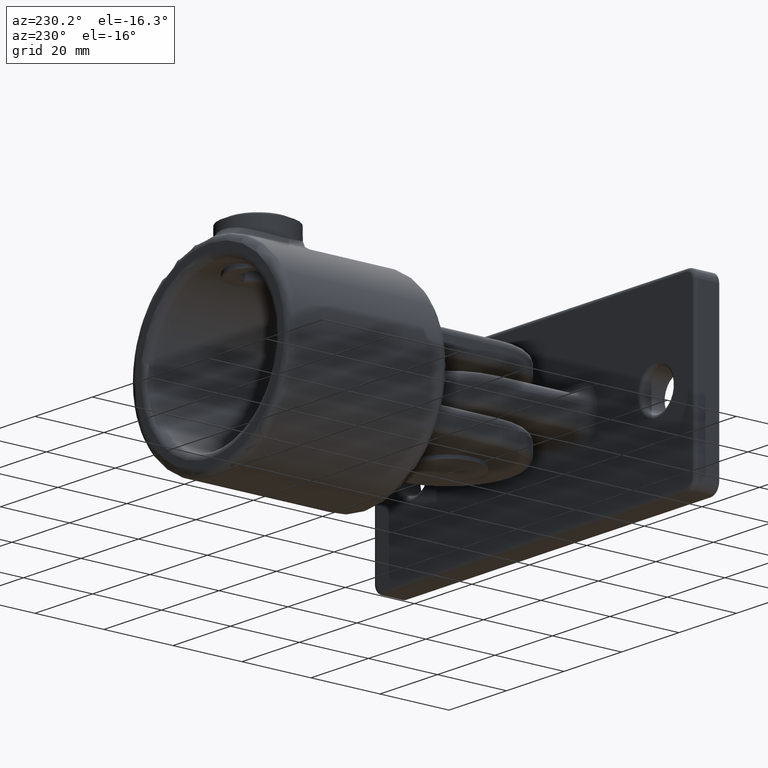
[diagram: clean part render]
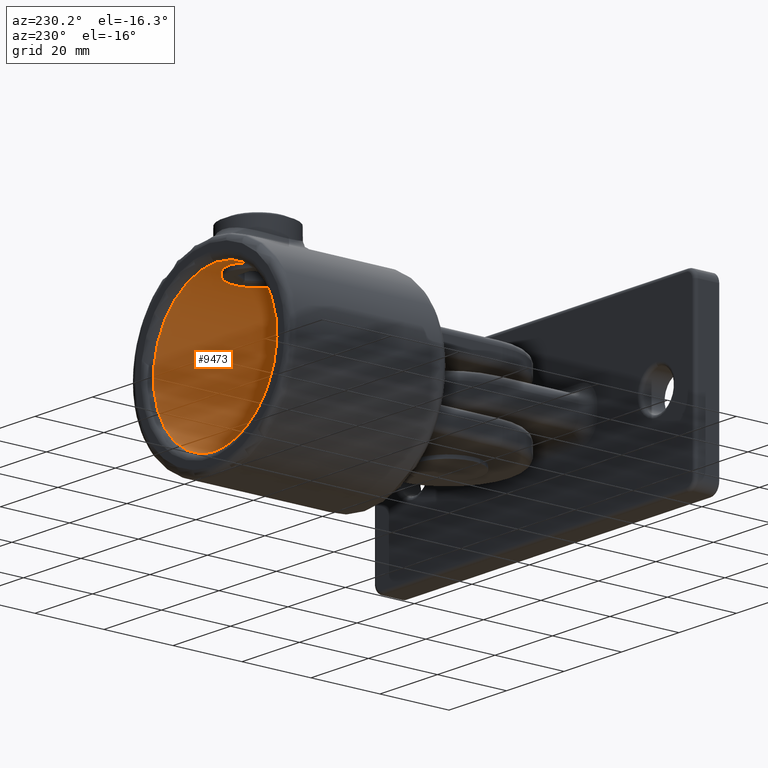
[diagram: same view with one face highlighted and labeled with its STEP entity id]
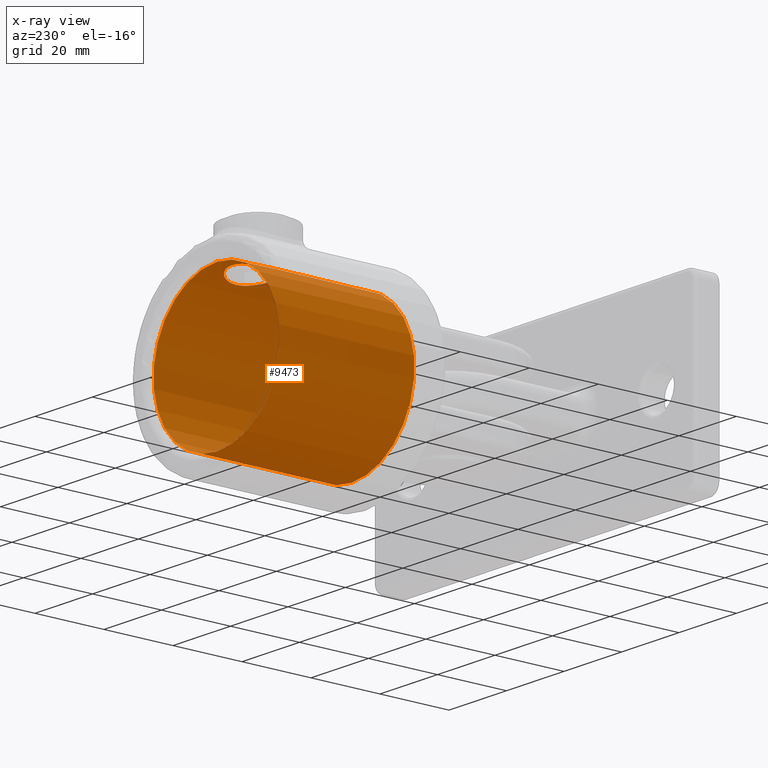
[diagram: x-ray of the same camera — body ghosted, the highlighted face saturated]
A machine part, auxiliary view. The second image highlights one B-rep face of the part: STEP entity #9473.
The next image is the same camera in x-ray: the body ghosted, the highlighted face saturated — about 1% of this face is hidden behind the body in this view.
In plain terms, the highlighted cylindrical surface (bore or boss wall) has radius 22 mm, axis along (0, 1, -0).
Its self-contained STEP definition (entity closure, byte-faithful):
#259 = CARTESIAN_POINT ( 'NONE',  ( 1.744120752521435058, 6.572894206682049045, 21.93214807940371358 ) ) ;
#319 = CARTESIAN_POINT ( 'NONE',  ( 7.219894509126602244, 11.53485251028716441, 20.78170271618218834 ) ) ;
#376 = CARTESIAN_POINT ( 'NONE',  ( 0.5069383500712751900, 6.375336435339058028, 21.99988339459276077 ) ) ;
#423 = CARTESIAN_POINT ( 'NONE',  ( 6.611928506554293428, 10.16986656214565876, 20.98489372196628366 ) ) ;
#485 = CARTESIAN_POINT ( 'NONE',  ( -5.033065880176721407, 8.266701390164461927, 21.41744710376905303 ) ) ;
#544 = CARTESIAN_POINT ( 'NONE',  ( 6.061788610552895307, 18.65192829199440894, 21.15035175818984925 ) ) ;
#650 = CARTESIAN_POINT ( 'NONE',  ( -0.5044995840867402270, 21.61250152635248867, 21.99565864146504879 ) ) ;
#709 = CARTESIAN_POINT ( 'NONE',  ( 1.741150023539537628, 21.42780954637419200, 21.93238654071083715 ) ) ;
#765 = CARTESIAN_POINT ( 'NONE',  ( -3.828680771544722194, 20.59876985896100621, 21.66542382513450349 ) ) ;
#1559 = CARTESIAN_POINT ( 'NONE',  ( -5.744380954961322061, 8.961298951037781180, 21.23988548586972769 ) ) ;
#1617 = CARTESIAN_POINT ( 'NONE',  ( 6.047477561938723767, 9.349152964423559808, 21.15312840405045947 ) ) ;
#1676 = CARTESIAN_POINT ( 'NONE',  ( -7.376242548108281838, 12.00365463959691859, 20.72684693076451623 ) ) ;
#1736 = CARTESIAN_POINT ( 'NONE',  ( 3.391686376140039094, 7.152853826625960032, 21.74189790547039536 ) ) ;
#1795 = CARTESIAN_POINT ( 'NONE',  ( -0.4967664929795513329, 6.374666957011392299, 22.00011542964954359 ) ) ;
#1851 = CARTESIAN_POINT ( 'NONE',  ( -6.609827527296566529, 17.83352380905276391, 20.98554274749457704 ) ) ;
#1911 = CARTESIAN_POINT ( 'NONE',  ( -7.526244566691017823, 15.24894782429787554, 20.67264887702679843 ) ) ;
#2028 = CARTESIAN_POINT ( 'NONE',  ( 2.467673975803830633, 21.21901543052596040, 21.86249712203613882 ) ) ;
#2078 = CARTESIAN_POINT ( 'NONE',  ( -0.2509227584277939349, 21.62501038588346702, 22.00000359965278918 ) ) ;
#2773 = CARTESIAN_POINT ( 'NONE',  ( 0.000000000000000000, 41.00000000000000000, 22.00000000000000000 ) ) ;
#2940 = CARTESIAN_POINT ( 'NONE',  ( 7.624999999999991118, 13.49196709563697461, 20.63636050760889518 ) ) ;
#3002 = CARTESIAN_POINT ( 'NONE',  ( 5.042601277762392975, 8.259267779060273540, 21.41731923223319356 ) ) ;
#3115 = CARTESIAN_POINT ( 'NONE',  ( -1.987851816712462583, 6.621683101354559398, 21.91552872549091546 ) ) ;
#3171 = CARTESIAN_POINT ( 'NONE',  ( 7.366888993540053221, 15.98306067469999014, 20.73004966125873594 ) ) ;
#3228 = CARTESIAN_POINT ( 'NONE',  ( -1.991475131803948750, 21.37728611037963589, 21.91518116288212070 ) ) ;
#3306 = CIRCLE ( 'NONE', #7887, 22.00000000000000000 ) ;
#3348 = CARTESIAN_POINT ( 'NONE',  ( -3.390244409704343820, 20.83438387452716967, 21.73834466594847115 ) ) ;
#3833 = CARTESIAN_POINT ( 'NONE',  ( 7.624999999999985789, 14.00000000000000000, 20.63636050760889518 ) ) ;
#3938 = CYLINDRICAL_SURFACE ( 'NONE', #16284, 22.00000000000000000 ) ;
#4210 = CARTESIAN_POINT ( 'NONE',  ( -2.465388843888937753, 6.767059601170185346, 21.86644352487345699 ) ) ;
#4319 = CARTESIAN_POINT ( 'NONE',  ( -7.612520714727059712, 13.49663307839111503, 20.64098418219160180 ) ) ;
#4436 = CARTESIAN_POINT ( 'NONE',  ( 3.828887062803084440, 7.387042835202054292, 21.66839849050474598 ) ) ;
#4486 = CARTESIAN_POINT ( 'NONE',  ( 7.574700002619591643, 15.00675415872807683, 20.65513876949686178 ) ) ;
#4542 = CARTESIAN_POINT ( 'NONE',  ( -1.008260717355036640, 21.56228203949716260, 21.97832862680959920 ) ) ;
#4718 = CARTESIAN_POINT ( 'NONE',  ( 3.386157133365286231, 20.83641679318800044, 21.73898407993325677 ) ) ;
#5305 = CARTESIAN_POINT ( 'NONE',  ( 0.000000000000000000, 2.000000000000001776, 22.00000000000000000 ) ) ;
#5510 = CARTESIAN_POINT ( 'NONE',  ( -3.833383702826285155, 7.390112206914704274, 21.66750249047057864 ) ) ;
#5561 = CARTESIAN_POINT ( 'NONE',  ( 7.427662671633696867, 12.25849297994153986, 20.70827237386585296 ) ) ;
#5667 = CARTESIAN_POINT ( 'NONE',  ( -4.449959614901873195, 7.803251660079276952, 21.54626958716179175 ) ) ;
#5726 = CARTESIAN_POINT ( 'NONE',  ( 2.704525995297526020, 6.866435344852411582, 21.83435262132262267 ) ) ;
#5776 = CARTESIAN_POINT ( 'NONE',  ( 3.161635292792298824, 20.94309454555434158, 21.77286709399465181 ) ) ;
#5836 = CARTESIAN_POINT ( 'NONE',  ( 1.000809328709071355, 21.57577309152584633, 21.98279126476140277 ) ) ;
#5893 = CARTESIAN_POINT ( 'NONE',  ( -4.040740729533344400, 20.47101464409993099, 21.62674552940632466 ) ) ;
#5945 = ORIENTED_EDGE ( 'NONE', *, *, #10067, .T. ) ;
#5947 = CARTESIAN_POINT ( 'NONE',  ( -7.637279292131632147, 13.99700276109694030, 20.63181072917495840 ) ) ;
#5956 = FACE_OUTER_BOUND ( 'NONE', #13896, .T. ) ;
#6000 = CARTESIAN_POINT ( 'NONE',  ( 6.612432036779883227, 17.82902866950013276, 20.98471832579984664 ) ) ;
#6428 = VERTEX_POINT ( 'NONE', #5305 ) ;
#6788 = CARTESIAN_POINT ( 'NONE',  ( -5.218750621190687333, 8.435225439610738007, 21.37281694012202848 ) ) ;
#6845 = CARTESIAN_POINT ( 'NONE',  ( -1.006355580253734505, 6.425149272220864738, 21.98247489727025439 ) ) ;
#6901 = CARTESIAN_POINT ( 'NONE',  ( 7.624999999999988454, 14.00000000000000178, 20.63636050760889873 ) ) ;
#7013 = CARTESIAN_POINT ( 'NONE',  ( 2.470208812716791602, 6.781857984817097673, 21.86220862496995210 ) ) ;
#7046 = CARTESIAN_POINT ( 'NONE',  ( 0.000000000000000000, 46.00000000000000000, 0.000000000000000000 ) ) ;
#7115 = CARTESIAN_POINT ( 'NONE',  ( -6.058616424584792881, 18.65605968120395630, 21.15126453352802827 ) ) ;
#7172 = CARTESIAN_POINT ( 'NONE',  ( 4.662098031544898546, 20.05429117644792214, 21.50449255108060598 ) ) ;
#7211 = DIRECTION ( 'NONE',  ( 0.000000000000000000, 0.000000000000000000, -1.000000000000000000 ) ) ;
#7236 = CARTESIAN_POINT ( 'NONE',  ( -5.745338895548608882, 19.03785188027714170, 21.23965794442500865 ) ) ;
#7664 = B_SPLINE_CURVE_WITH_KNOTS ( 'NONE', 3,
 ( #6901, #2940, #9472, #5561, #15903, #319, #15781, #8084, #423, #9351, #1617, #11921, #13174, #3002, #11874, #4436, #1736, #5726, #7013, #12034, #259, #15964, #376, #1795, #6845, #3115, #4210, #9296, #5510, #5667, #8254, #485, #6788, #1559, #10650, #15846, #9520, #9413, #1676, #10705, #11977, #4319, #5947, #12374, #12200, #1911, #11047, #16128, #14929, #1851, #7115, #7236, #16234, #10875, #14984, #8528, #5893, #765, #3348, #13626, #10930, #3228, #12260, #4542, #650, #2078, #13508, #5836, #709, #9742, #2028, #11099, #5776, #4718, #13681, #8313, #7172, #16018, #9633, #544, #6000, #14762, #12144, #16181, #3171, #9694, #4486, #12315, #16077 ),
 .UNSPECIFIED., .T., .F.,
 ( 4, 2, 2, 2, 2, 2, 2, 2, 2, 2, 2, 2, 2, 2, 2, 2, 2, 2, 2, 2, 2, 1, 2, 2, 2, 2, 2, 2, 2, 2, 2, 2, 2, 2, 2, 2, 2, 2, 2, 2, 2, 2, 2, 2, 4 ),
 ( 0.000000000000000000, 0.001501461663367373561, 0.002252192495051061425, 0.003002923326734748422, 0.004504384990102121115, 0.005255115821785807245, 0.006005846653469493375, 0.007507308316836859563, 0.009008769980204228353, 0.009759500811887913616, 0.01051023164357159714, 0.01201169330693896420, 0.01351315497030633472, 0.01501461663367370351, 0.01651607829704107230, 0.01726680912872475410, 0.01801753996040843936, 0.01951900162377580641, 0.02102046328714317347, 0.02252192495051053706, 0.02327265578219421885, 0.02402338661387789717, 0.02477411744556158243, 0.02552484827724526076, 0.02702630994061263475, 0.02852777160398000528, 0.03002923326734737927, 0.03077996409903106453, 0.03153069493071473939, 0.03228142576239842465, 0.03303215659408210297, 0.03453361825744947350, 0.03528434908913315876, 0.03603507992081683708, 0.03753654158418420761, 0.03828727241586788593, 0.03903800324755157120, 0.03978873407923524952, 0.04053946491091893478, 0.04204092657428630531, 0.04354238823765366889, 0.04504384990102103942, 0.04579458073270471774, 0.04654531156438840300, 0.04804677322775577353 ),
 .UNSPECIFIED. ) ;
#7696 = EDGE_CURVE ( 'NONE', #14855, #14855, #7664, .T. ) ;
#7887 = AXIS2_PLACEMENT_3D ( 'NONE', #16358, #9880, #15063 ) ;
#8084 = CARTESIAN_POINT ( 'NONE',  ( 6.846266567036094486, 10.60614432770961457, 20.90860310004765665 ) ) ;
#8254 = CARTESIAN_POINT ( 'NONE',  ( -4.648803939148645092, 7.950943293446725235, 21.50412552354316276 ) ) ;
#8313 = CARTESIAN_POINT ( 'NONE',  ( 4.040531449598918634, 20.47124209723600075, 21.62680501342272166 ) ) ;
#8528 = CARTESIAN_POINT ( 'NONE',  ( -4.451008252176435143, 20.19597786523828020, 21.54604913611921546 ) ) ;
#8689 = CIRCLE ( 'NONE', #13206, 22.00000000000000000 ) ;
#8830 = EDGE_LOOP ( 'NONE', ( #5945 ) ) ;
#9042 = DIRECTION ( 'NONE',  ( 0.000000000000000000, 1.000000000000000000, 0.000000000000000000 ) ) ;
#9296 = CARTESIAN_POINT ( 'NONE',  ( -3.394048229469694533, 7.153540653693322149, 21.74166348727912279 ) ) ;
#9351 = CARTESIAN_POINT ( 'NONE',  ( 6.197184970212589405, 9.550590221517039069, 21.10961248387739886 ) ) ;
#9413 = CARTESIAN_POINT ( 'NONE',  ( -7.230253966135366639, 11.52800252386387747, 20.77893231174703459 ) ) ;
#9472 = CARTESIAN_POINT ( 'NONE',  ( 7.574742604297253656, 12.99328388479229979, 20.65512392540478359 ) ) ;
#9473 = ADVANCED_FACE ( 'NONE', ( #15805, #11160, #5956 ), #3938, .F. ) ;
#9520 = CARTESIAN_POINT ( 'NONE',  ( -6.848449237832352487, 10.61088699308018590, 20.90787754574373025 ) ) ;
#9633 = CARTESIAN_POINT ( 'NONE',  ( 5.742064013625253871, 19.04119061001664903, 21.24049436844861560 ) ) ;
#9694 = CARTESIAN_POINT ( 'NONE',  ( 7.427838196583788744, 15.74071737850264086, 20.70820922133502506 ) ) ;
#9742 = CARTESIAN_POINT ( 'NONE',  ( 1.987679914392864289, 21.36564506305799327, 21.91135148318828385 ) ) ;
#9880 = DIRECTION ( 'NONE',  ( -0.000000000000000000, -1.000000000000000000, -0.000000000000000000 ) ) ;
#10067 = EDGE_CURVE ( 'NONE', #6428, #6428, #3306, .T. ) ;
#10273 = ORIENTED_EDGE ( 'NONE', *, *, #14546, .T. ) ;
#10650 = CARTESIAN_POINT ( 'NONE',  ( -6.057276481397570578, 9.342147487903995184, 21.15165330957719547 ) ) ;
#10705 = CARTESIAN_POINT ( 'NONE',  ( -7.525127178381075588, 12.74440574594264852, 20.67305602479121873 ) ) ;
#10852 = EDGE_LOOP ( 'NONE', ( #15117 ) ) ;
#10875 = CARTESIAN_POINT ( 'NONE',  ( -5.031814911919155975, 19.73434937711052584, 21.41773321504819805 ) ) ;
#10930 = CARTESIAN_POINT ( 'NONE',  ( -2.467928310788690460, 21.23197995759938550, 21.86612931592376086 ) ) ;
#11047 = CARTESIAN_POINT ( 'NONE',  ( -7.377780432148792755, 15.99082713384686727, 20.72629806253242890 ) ) ;
#11099 = CARTESIAN_POINT ( 'NONE',  ( 2.702393403582718179, 21.13439342098603291, 21.83462271507471897 ) ) ;
#11160 = FACE_BOUND ( 'NONE', #10852, .T. ) ;
#11874 = CARTESIAN_POINT ( 'NONE',  ( 4.661166829668689005, 7.944828459147533550, 21.50472955117095708 ) ) ;
#11921 = CARTESIAN_POINT ( 'NONE',  ( 5.731860609014171715, 8.965306665812287079, 21.24082390349372673 ) ) ;
#11977 = CARTESIAN_POINT ( 'NONE',  ( -7.562819067106332227, 12.99619760962881898, 20.65924656668266479 ) ) ;
#12034 = CARTESIAN_POINT ( 'NONE',  ( 1.990624038324366518, 6.635156371801394393, 21.91108197871979257 ) ) ;
#12144 = CARTESIAN_POINT ( 'NONE',  ( 7.134774701856125390, 16.70148616347376702, 20.81118140044697995 ) ) ;
#12200 = CARTESIAN_POINT ( 'NONE',  ( -7.563658825007157915, 14.99741684461681324, 20.65893883332975989 ) ) ;
#12260 = CARTESIAN_POINT ( 'NONE',  ( -1.256604829429513126, 21.52489162323303518, 21.96545535501798696 ) ) ;
#12315 = CARTESIAN_POINT ( 'NONE',  ( 7.624999999999985789, 14.50803290436302717, 20.63636050760890228 ) ) ;
#12374 = CARTESIAN_POINT ( 'NONE',  ( -7.612918293396783831, 14.49724263805369695, 20.64083727949120117 ) ) ;
#12802 = DIRECTION ( 'NONE',  ( 0.000000000000000000, 0.000000000000000000, 1.000000000000000000 ) ) ;
#13174 = CARTESIAN_POINT ( 'NONE',  ( 5.565712582313707024, 8.782311745530272162, 21.28509316720376532 ) ) ;
#13206 = AXIS2_PLACEMENT_3D ( 'NONE', #14463, #9042, #12802 ) ;
#13508 = CARTESIAN_POINT ( 'NONE',  ( 0.5027917357800689713, 21.62497920866297818, 21.99999279391160911 ) ) ;
#13626 = CARTESIAN_POINT ( 'NONE',  ( -3.162490027444840202, 20.94277874052527011, 21.77276342539653697 ) ) ;
#13681 = CARTESIAN_POINT ( 'NONE',  ( 3.825063351333072070, 20.60087456783659832, 21.66606515539266553 ) ) ;
#13896 = EDGE_LOOP ( 'NONE', ( #10273 ) ) ;
#14463 = CARTESIAN_POINT ( 'NONE',  ( 0.000000000000000000, 41.00000000000000000, 0.000000000000000000 ) ) ;
#14546 = EDGE_CURVE ( 'NONE', #14660, #14660, #8689, .T. ) ;
#14660 = VERTEX_POINT ( 'NONE', #2773 ) ;
#14762 = CARTESIAN_POINT ( 'NONE',  ( 6.846573099697986997, 17.39333345565065159, 20.90850454013190785 ) ) ;
#14855 = VERTEX_POINT ( 'NONE', #3833 ) ;
#14929 = CARTESIAN_POINT ( 'NONE',  ( -6.849123641358016101, 17.38798999331558193, 20.90766126454527196 ) ) ;
#14984 = CARTESIAN_POINT ( 'NONE',  ( -4.649215144515816966, 20.04869594429945678, 21.50402882993780551 ) ) ;
#15063 = DIRECTION ( 'NONE',  ( 0.000000000000000000, 0.000000000000000000, 1.000000000000000000 ) ) ;
#15117 = ORIENTED_EDGE ( 'NONE', *, *, #7696, .F. ) ;
#15781 = CARTESIAN_POINT ( 'NONE',  ( 7.134204655069264156, 11.29703898522355487, 20.81137636762999321 ) ) ;
#15805 = FACE_OUTER_BOUND ( 'NONE', #8830, .T. ) ;
#15846 = CARTESIAN_POINT ( 'NONE',  ( -6.609199511160669616, 10.16533310205373120, 20.98574558890662445 ) ) ;
#15903 = CARTESIAN_POINT ( 'NONE',  ( 7.366594443902306999, 12.01578348761492343, 20.73015510809695172 ) ) ;
#15964 = CARTESIAN_POINT ( 'NONE',  ( 1.004430189336775081, 6.424732634896549222, 21.98261645709674283 ) ) ;
#16018 = CARTESIAN_POINT ( 'NONE',  ( 5.043221404268413366, 19.74028046097219047, 21.41718510963093536 ) ) ;
#16058 = DIRECTION ( 'NONE',  ( -0.000000000000000000, -1.000000000000000000, -0.000000000000000000 ) ) ;
#16077 = CARTESIAN_POINT ( 'NONE',  ( 7.624999999999988454, 14.00000000000000178, 20.63636050760889873 ) ) ;
#16128 = CARTESIAN_POINT ( 'NONE',  ( -7.231831435827095866, 16.46770843763983194, 20.77838800993376367 ) ) ;
#16181 = CARTESIAN_POINT ( 'NONE',  ( 7.220580388854526355, 16.46308788531235479, 20.78146364550593006 ) ) ;
#16234 = CARTESIAN_POINT ( 'NONE',  ( -5.217013377194960277, 19.56645828334746184, 21.37324890084306261 ) ) ;
#16284 = AXIS2_PLACEMENT_3D ( 'NONE', #7046, #16058, #7211 ) ;
#16358 = CARTESIAN_POINT ( 'NONE',  ( 0.000000000000000000, 2.000000000000001776, 0.000000000000000000 ) ) ;